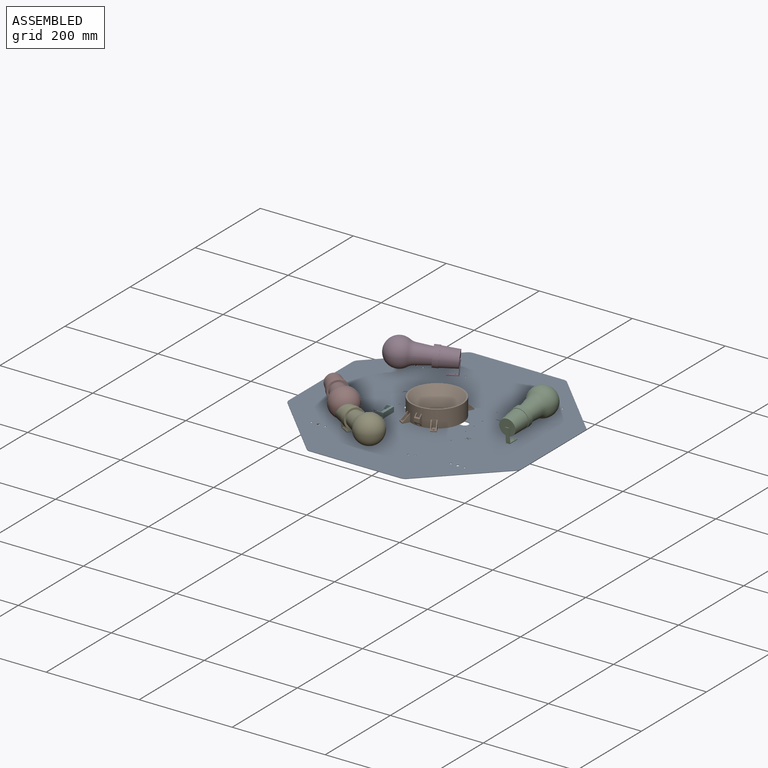
[diagram: assembled view]
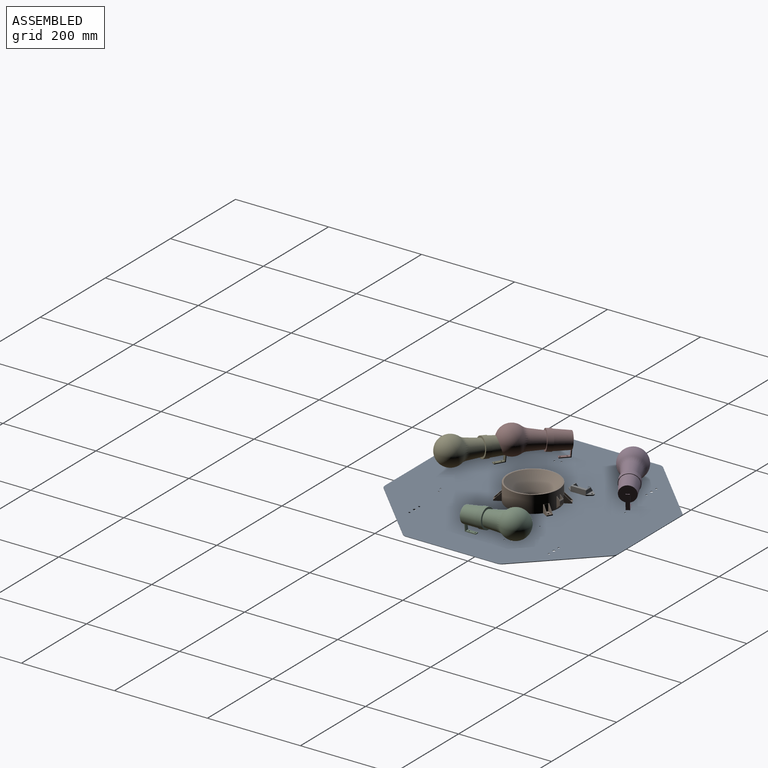
[diagram: assembled view, second angle]
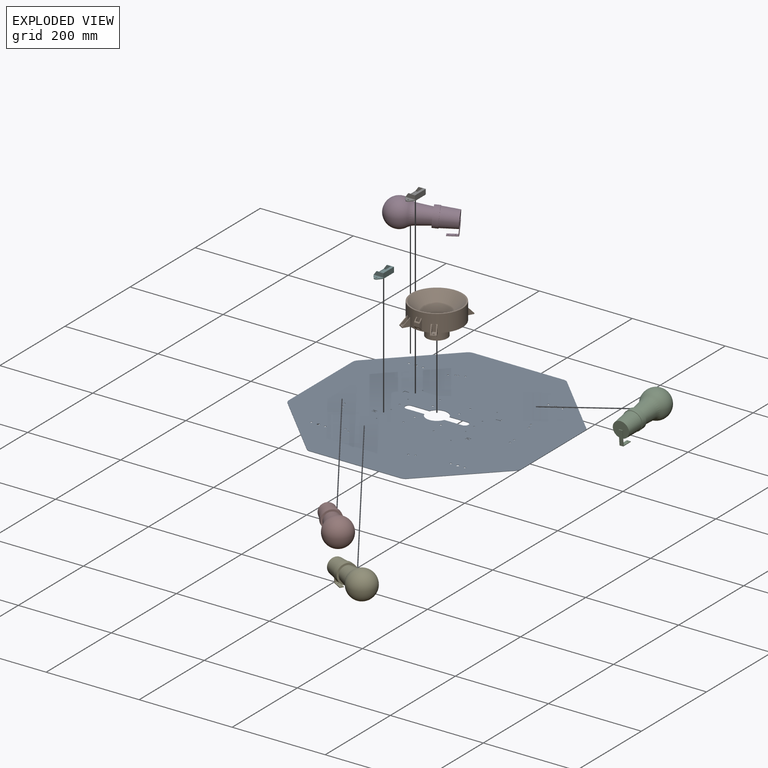
[diagram: exploded view]
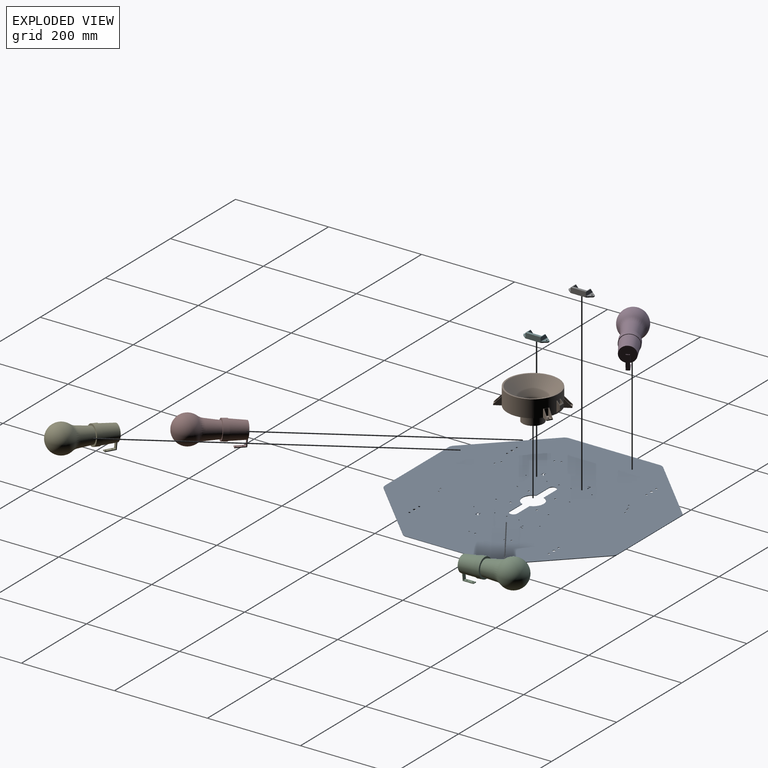
[diagram: exploded view, second angle]
FCSTD DOCUMENT  (FreeCAD 0.19R24276 (Git))
Label: Baugruppe_Lampe
License: All rights reserved
LicenseURL: http://en.wikipedia.org/wiki/All_rights_reserved
objects: Part::FeaturePython×25, App::Link×8, App::FeaturePython×5
note: 24 computed .brp shape members not serialized (recipe doc carries the construction recipe); baked Part::Feature solids carry a one-line shape summary decoded from their .brp
EXTERNAL_REF file=Metalicht_v2.FCStd obj=Body
EXTERNAL_REF file=Trichter.FCStd obj=Body
EXTERNAL_REF file=Birne_mit_Fassung.FCStd obj=Body
EXTERNAL_REF file=Wago_5x_flach.FCStd obj=Part__Feature

FEATURE [App::Link] Link  label="Body"
  LinkedObject = -> <external Metalicht_v2.FCStd>#Body
FEATURE [App::Link] Link001  label="Body001"
  LinkPlacement = pos=(0,0,1) rot=(0,0,1;0rad)
  LinkedObject = -> <external Trichter.FCStd>#Body
  Placement = pos=(0,0,1) rot=(0,0,1;0rad)
FEATURE [App::Link] Link002  label="Body002"
  LinkPlacement = pos=(169.926,-26,33.009) rot=(-0.043578,0.043578,-0.998099;4.71049rad)
  LinkedObject = -> <external Birne_mit_Fassung.FCStd>#Body
  Placement = pos=(169.926,-26,33.009) rot=(-0.043578,0.043578,-0.998099;4.71049rad)
FEATURE [App::Link] Link003  label="Body003"
  LinkPlacement = pos=(-62.4466,160.161,33.009) rot=(-0.043616,-0.011687,-0.99898;2.6185rad)
  LinkedObject = -> <external Birne_mit_Fassung.FCStd>#Body
  Placement = pos=(-62.4466,160.161,33.009) rot=(-0.043616,-0.011687,-0.99898;2.6185rad)
FEATURE [App::Link] Link004  label="Body004"
  LinkPlacement = pos=(-107.48,-134.161,33.009) rot=(-0.043053,-0.160675,-0.986068;0.530656rad)
  LinkedObject = -> <external Birne_mit_Fassung.FCStd>#Body
  Placement = pos=(-107.48,-134.161,33.009) rot=(-0.043053,-0.160675,-0.986068;0.530656rad)
FEATURE [App::Link] Link005  label="Wago_5x_flach"
  LinkPlacement = pos=(-69.5826,-37.87,-17.9525) rot=(0.57735,0.57735,-0.57735;4.18879rad)
  LinkedObject = -> <external Wago_5x_flach.FCStd>#Part__Feature
  Placement = pos=(-69.5826,-37.87,-17.9525) rot=(0.57735,0.57735,-0.57735;4.18879rad)
FEATURE [App::Link] Link006  label="Wago_5x_flach001"
  LinkPlacement = pos=(-69.5,59.5001,-18) rot=(0.57735,0.57735,-0.57735;4.18879rad)
  LinkedObject = -> <external Wago_5x_flach.FCStd>#Part__Feature
  Placement = pos=(-69.5,59.5001,-18) rot=(0.57735,0.57735,-0.57735;4.18879rad)
FEATURE [App::Link] Link007  label="Body005"
  LinkPlacement = pos=(-188.526,-48.5427,34.0759) rot=(-0.043379,-0.104728,-0.993554;0.789981rad)
  LinkedObject = -> <external Birne_mit_Fassung.FCStd>#Body
  Placement = pos=(-188.526,-48.5427,34.0759) rot=(-0.043379,-0.104728,-0.993554;0.789981rad)
FEATURE [Part::FeaturePython] Parts  # WARN: FeaturePython — macro-defined, semantics opaque (R4)
  Group = -> [Link,Link001,Link002,Link003,Link004,Link005,Link006,Link007]
  GroupMode = 0
FEATURE [Part::FeaturePython] Assembly  # WARN: FeaturePython — macro-defined, semantics opaque (R4)
  AutoRelax = true
  BuildShape = 0
  Freeze = false
  Group = -> [Constraints,Elements,Parts]
  Verbose = false
  _SolverType = 1
  _Version = 1
FEATURE [App::FeaturePython] Constraints  # WARN: FeaturePython — macro-defined, semantics opaque (R4)
  Group = -> [Constraint]
  _Version = 1
FEATURE [App::FeaturePython] Elements  # WARN: FeaturePython — macro-defined, semantics opaque (R4)
  Group = -> [_Element,_Element001,_Element002,_Element003,_Element004,_Element005,_Element006,_Element007,_Element008,_Element009,_Element010,_Element011,_Element012,_Element013,_Element014,_Element015,_Element016,_Element017,_Element018,_Element019,_Element020,_Element021,_Element022]
FEATURE [App::FeaturePython] Constraint  label="Locked"  # WARN: FeaturePython — macro-defined, semantics opaque (R4)
  Disabled = false
  Group = -> [ElementLink,ElementLink001]
  _ConstraintType = 0
  _Parent = -> Constraints
FEATURE [App::FeaturePython] ElementLink  label="_Element"  # link proxy (typed FeaturePython)
  LinkTransform = true
  LinkedObject = -> _Element
  _Parent = -> Constraint
FEATURE [Part::FeaturePython] _Element  # link proxy (typed FeaturePython)
  Detach = false
  LinkTransform = true
  LinkedObject = -> Link [PolarPattern.Face5]
  _Parent = -> Elements
FEATURE [App::FeaturePython] ElementLink001  label="_Element001"  # link proxy (typed FeaturePython)
  LinkTransform = true
  LinkedObject = -> _Element001
  _Parent = -> Constraint
FEATURE [Part::FeaturePython] _Element001  # link proxy (typed FeaturePython)
  Detach = false
  LinkTransform = true
  LinkedObject = -> Link001 [Revolution.Face2]
  _Parent = -> Elements
FEATURE [Part::FeaturePython] _Element002  # link proxy (typed FeaturePython)
  Detach = false
  LinkTransform = true
  LinkedObject = -> Link [PolarPattern.Edge37]
  _Parent = -> Elements
FEATURE [Part::FeaturePython] _Element003  # link proxy (typed FeaturePython)
  Detach = false
  LinkTransform = true
  LinkedObject = -> Link003 [Hole.Edge39]
  _Parent = -> Elements
FEATURE [Part::FeaturePython] _Element004  # link proxy (typed FeaturePython)
  Detach = false
  LinkTransform = true
  LinkedObject = -> Link [PolarPattern.Edge35]
  _Parent = -> Elements
FEATURE [Part::FeaturePython] _Element005  # link proxy (typed FeaturePython)
  Detach = false
  LinkTransform = true
  LinkedObject = -> Link003 [Hole.Edge38]
  _Parent = -> Elements
FEATURE [Part::FeaturePython] _Element006  # link proxy (typed FeaturePython)
  Detach = false
  LinkTransform = true
  LinkedObject = -> Link004 [Hole.Edge38]
  _Parent = -> Elements
FEATURE [Part::FeaturePython] _Element007  # link proxy (typed FeaturePython)
  Detach = false
  LinkTransform = true
  LinkedObject = -> Link [PolarPattern.Edge29]
  _Parent = -> Elements
FEATURE [Part::FeaturePython] _Element008  # link proxy (typed FeaturePython)
  Detach = false
  LinkTransform = true
  LinkedObject = -> Link [PolarPattern.Edge30]
  _Parent = -> Elements
FEATURE [Part::FeaturePython] _Element009  # link proxy (typed FeaturePython)
  Detach = false
  LinkTransform = true
  LinkedObject = -> Link004 [Hole.Edge39]
  _Parent = -> Elements
FEATURE [Part::FeaturePython] _Element010  # link proxy (typed FeaturePython)
  Detach = false
  LinkTransform = true
  LinkedObject = -> Link002 [Hole.Edge38]
  _Parent = -> Elements
FEATURE [Part::FeaturePython] _Element011  # link proxy (typed FeaturePython)
  Detach = false
  LinkTransform = true
  LinkedObject = -> Link [PolarPattern.Edge33]
  _Parent = -> Elements
FEATURE [Part::FeaturePython] _Element012  # link proxy (typed FeaturePython)
  Detach = false
  LinkTransform = true
  LinkedObject = -> Link [PolarPattern.Edge32]
  _Parent = -> Elements
FEATURE [Part::FeaturePython] _Element013  # link proxy (typed FeaturePython)
  Detach = false
  LinkTransform = true
  LinkedObject = -> Link002 [Hole.Edge39]
  _Parent = -> Elements
FEATURE [Part::FeaturePython] _Element014  # link proxy (typed FeaturePython)
  Detach = false
  LinkTransform = true
  LinkedObject = -> Link [PolarPattern.Edge36]
  _Parent = -> Elements
FEATURE [Part::FeaturePython] _Element015  # link proxy (typed FeaturePython)
  Detach = false
  LinkTransform = true
  LinkedObject = -> Link [PolarPattern.Edge34]
  _Parent = -> Elements
FEATURE [Part::FeaturePython] _Element016  # link proxy (typed FeaturePython)
  Detach = false
  LinkTransform = true
  LinkedObject = -> Link [Pocket002.Edge64]
  _Parent = -> Elements
FEATURE [Part::FeaturePython] _Element017  # link proxy (typed FeaturePython)
  Detach = false
  LinkTransform = true
  LinkedObject = -> Link [Pocket002.Edge63]
  _Parent = -> Elements
FEATURE [Part::FeaturePython] _Element018  # link proxy (typed FeaturePython)
  Detach = false
  LinkTransform = true
  LinkedObject = -> Link [Pocket002.Edge100]
  _Parent = -> Elements
FEATURE [Part::FeaturePython] _Element019  # link proxy (typed FeaturePython)
  Detach = false
  LinkTransform = true
  LinkedObject = -> Link [Pocket002.Edge99]
  _Parent = -> Elements
FEATURE [Part::FeaturePython] _Element020  # link proxy (typed FeaturePython)
  Detach = false
  LinkTransform = true
  LinkedObject = -> Link [Pocket002.Edge86]
  _Parent = -> Elements
FEATURE [Part::FeaturePython] _Element021  # link proxy (typed FeaturePython)
  Detach = false
  LinkTransform = true
  LinkedObject = -> Link [Pocket002.Edge88]
  _Parent = -> Elements
FEATURE [Part::FeaturePython] _Element022  # link proxy (typed FeaturePython)
  Detach = false
  LinkTransform = true
  LinkedObject = -> Link [Pocket002.Edge87]
  _Parent = -> Elements

RESOLVED EXTERNAL PARTS (link-assembly join: the EXTERNAL_REF files above that resolve inside this repo's crawl, each included once):
---- part Birne_mit_Fassung.FCStd = doc fcstd_91edc3af70b6 ----
FCSTD DOCUMENT  (FreeCAD 0.19R24276 (Git))
Label: Birne_mit_Fassung
License: All rights reserved
LicenseURL: http://en.wikipedia.org/wiki/All_rights_reserved
objects: Sketcher::SketchObject×3, PartDesign::Revolution×1, PartDesign::Pad×1, PartDesign::Fillet×1, PartDesign::Hole×1, PartDesign::Body×1
note: 12 computed .brp shape members not serialized (recipe doc carries the construction recipe); baked Part::Feature solids carry a one-line shape summary decoded from their .brp

FEATURE [Sketcher::SketchObject] Sketch
  FullyConstrained = true
  MapMode = 5
  Placement = pos=(0,0,0) rot=(1,0,0;1.5708rad)
  Support = -> [XZ_Plane]
  sketch-geometry (8):
    g0: LineSegment StartX=0 StartY=0 StartZ=0 EndX=0 EndY=17.5 EndZ=0
    g1: LineSegment StartX=0 StartY=17.5 StartZ=0 EndX=36 EndY=20 EndZ=0
    g2: LineSegment StartX=36 StartY=20 StartZ=0 EndX=36 EndY=21 EndZ=0
    g3: LineSegment StartX=36 StartY=21 StartZ=0 EndX=48 EndY=21 EndZ=0
    g4: LineSegment StartX=48 StartY=21 StartZ=0 EndX=48 EndY=17 EndZ=0
    g5: LineSegment StartX=48 StartY=17 StartZ=0 EndX=87 EndY=21.4243 EndZ=0
    g6: ArcOfCircle CenterX=108 CenterY=0 CenterZ=0 NormalX=0 NormalY=0 NormalZ=1 AngleXU=0 Radius=30 StartAngle=0 EndAngle=2.34619
    g7: LineSegment StartX=138 StartY=0 StartZ=0 EndX=0 EndY=0 EndZ=0
  constraints (24):
    c: Coincident(g-1,g0)
    c: PointOnObject(g0,g-2)
    c: Coincident(g0,g1)
    c: Coincident(g1,g2)
    c: Vertical(g2)
    c: Coincident(g2,g3)
    c: Horizontal(g3)
    c: Coincident(g3,g4)
    c: Vertical(g4)
    c: Coincident(g4,g5)
    c: PointOnObject(g6,g-1)
    c: Coincident(g6,g5)
    c: PointOnObject(g6,g-1)
    c: Coincident(g7,g6)
    c: Coincident(g7,g0)
    c: DistanceX(g0,g3) = 48
    c: Radius(g6) = 30
    c: DistanceX(g4,g6) = 90
    c: DistanceX(g3,g3) = 12
    c: DistanceX(g4,g5) = 39
    c: DistanceY(g0,g0) = 17.5
    c: DistanceY(g0,g3) = 21
    c: DistanceY(g2,g2) = 1
    c: DistanceY(g0,g4) = 17
FEATURE [PartDesign::Revolution] Revolution
  Angle = 360
  Axis = (1,0,0)
  Base = (0,0,0)
  Placement = pos=(0,0,0) rot=(1,0,0;1.5708rad)
  Profile = -> Sketch
  ReferenceAxis = -> Sketch [H_Axis]
FEATURE [Sketcher::SketchObject] Sketch001
  FullyConstrained = true
  MapMode = 5
  Placement = pos=(0,0,0) rot=(1,0,0;1.5708rad)
  Support = -> [XZ_Plane]
  sketch-geometry (6):
    g0: LineSegment StartX=0 StartY=0 StartZ=0 EndX=0 EndY=-30.6255 EndZ=0
    g1: LineSegment StartX=0 StartY=-30.6255 StartZ=0 EndX=21.5432 EndY=-32.5103 EndZ=0
    g2: LineSegment StartX=21.5432 StartY=-32.5103 StartZ=0 EndX=21.4125 EndY=-34.0046 EndZ=0
    g3: LineSegment StartX=21.4125 StartY=-34.0046 StartZ=0 EndX=-1.5 EndY=-32 EndZ=0
    g4: LineSegment StartX=-1.5 StartY=-32 StartZ=0 EndX=-1.5 EndY=0 EndZ=0
    g5: LineSegment StartX=-1.5 StartY=0 StartZ=0 EndX=0 EndY=0 EndZ=0
  constraints (17):
    c: Coincident(g-1,g0)
    c: PointOnObject(g0,g-2)
    c: Coincident(g0,g1)
    c: Coincident(g1,g2)
    c: Coincident(g2,g3)
    c: Coincident(g3,g4)
    c: PointOnObject(g4,g-1)
    c: Vertical(g4)
    c: Coincident(g4,g5)
    c: Coincident(g5,g0)
    c: Perpendicular(g2,g3)
    c: Perpendicular(g1,g2)
    c: Equal(g5,g2)
    c: DistanceX(g5,g5) = 1.5
    c: DistanceY(g4,g4) = 32
    c: Angle(g1,g0) = 1.65806
    c: Distance(g3) = 23
FEATURE [PartDesign::Pad] Pad
  BaseFeature = -> Revolution
  Direction = (1,1,1)
  Length = 8
  Length2 = 100
  Midplane = true
  Placement = pos=(0,0,0) rot=(1,0,0;1.5708rad)
  Profile = -> Sketch001
  Type = 0
FEATURE [PartDesign::Fillet] Fillet
  Base = -> Pad [Edge30]
  BaseFeature = -> Pad
  Placement = pos=(0,0,0) rot=(1,0,0;1.5708rad)
  Radius = 25
  SupportTransform = false
FEATURE [Sketcher::SketchObject] Sketch002
  FullyConstrained = false
  MapMode = 5
  Placement = pos=(-2.78977,-2.12e-14,-31.8872) rot=(0.999048,0,-0.043619;3.14159rad)
  Support = -> [Fillet]
  sketch-geometry (2):
    g0: Circle CenterX=8 CenterY=0 CenterZ=0 NormalX=0 NormalY=0 NormalZ=1 AngleXU=0 Radius=2.06982
    g1: Circle CenterX=21 CenterY=0 CenterZ=0 NormalX=0 NormalY=0 NormalZ=1 AngleXU=0 Radius=2.01033
  constraints (4):
    c: PointOnObject(g0,g-1)
    c: PointOnObject(g1,g-1)
    c: DistanceX(g0,g1) = 13
    c: DistanceX(g-1,g0) = 8
FEATURE [PartDesign::Hole] Hole
  BaseFeature = -> Fillet
  Depth = 3
  DepthType = 0
  Diameter = 2.5
  DrillForDepth = false
  DrillPoint = 1
  DrillPointAngle = 118
  HoleCutCountersinkAngle = 90
  HoleCutCustomValues = false
  HoleCutDepth = 0
  HoleCutDiameter = 6.1
  HoleCutType = 0
  ModelActualThread = false
  Placement = pos=(0,0,0) rot=(1,0,0;1.5708rad)
  Profile = -> Sketch002
  Tapered = false
  TaperedAngle = 90
  ThreadAngle = 60
  ThreadClass = 5
  ThreadCutOffInner = 0.0541266
  ThreadCutOffOuter = 0.108253
  ThreadDirection = 0
  ThreadFit = 0
  ThreadPitch = 0.5
  ThreadSize = 9
  ThreadType = 1
  Threaded = true
FEATURE [PartDesign::Body] Body
  Group = -> [Sketch,Revolution,Sketch001,Pad,Fillet,Sketch002,Hole]
  Origin = -> Origin
  Tip = -> Hole
---- part Metalicht_v2.FCStd = doc fcstd_c46f964f9d03 ----
FCSTD DOCUMENT  (FreeCAD 0.19R24276 (Git))
Label: Metalicht_v2
License: All rights reserved
LicenseURL: http://en.wikipedia.org/wiki/All_rights_reserved
objects: Sketcher::SketchObject×7, PartDesign::Pocket×6, PartDesign::PolarPattern×2, PartDesign::Pad×1, PartDesign::Fillet×1, PartDesign::Body×1
note: 26 computed .brp shape members not serialized (recipe doc carries the construction recipe); baked Part::Feature solids carry a one-line shape summary decoded from their .brp

FEATURE [Sketcher::SketchObject] Sketch
  FullyConstrained = true
  MapMode = 5
  Support = -> [XY_Plane]
  sketch-geometry (21):
    g0: Circle CenterX=0 CenterY=0 CenterZ=0 NormalX=0 NormalY=0 NormalZ=1 AngleXU=0 Radius=250
    g1: Circle CenterX=0 CenterY=0 CenterZ=0 NormalX=0 NormalY=0 NormalZ=1 AngleXU=0 Radius=23
    g2: Circle CenterX=150 CenterY=150 CenterZ=0 NormalX=0 NormalY=0 NormalZ=1 AngleXU=0 Radius=2.75
    g3: Circle CenterX=-150 CenterY=150 CenterZ=0 NormalX=0 NormalY=0 NormalZ=1 AngleXU=0 Radius=2.75
    g4: Circle CenterX=-150 CenterY=-150 CenterZ=0 NormalX=0 NormalY=0 NormalZ=1 AngleXU=0 Radius=2.75
    g5: Circle CenterX=150 CenterY=-150 CenterZ=0 NormalX=0 NormalY=0 NormalZ=1 AngleXU=0 Radius=2.75
    g6: LineSegment StartX=103.553 StartY=250 StartZ=0 EndX=-103.553 EndY=250 EndZ=0
    g7: LineSegment StartX=-103.553 StartY=250 StartZ=0 EndX=-250 EndY=103.553 EndZ=0
    g8: LineSegment StartX=-250 StartY=103.553 StartZ=0 EndX=-250 EndY=-103.553 EndZ=0
    g9: LineSegment StartX=-250 StartY=-103.553 StartZ=0 EndX=-103.553 EndY=-250 EndZ=0
    g10: LineSegment StartX=-103.553 StartY=-250 StartZ=0 EndX=103.553 EndY=-250 EndZ=0
    g11: LineSegment StartX=103.553 StartY=-250 StartZ=0 EndX=250 EndY=-103.553 EndZ=0
    g12: LineSegment StartX=250 StartY=-103.553 StartZ=0 EndX=250 EndY=103.553 EndZ=0
    g13: LineSegment StartX=250 StartY=103.553 StartZ=0 EndX=103.553 EndY=250 EndZ=0
    g14: Circle CenterX=0 CenterY=0 CenterZ=0 NormalX=0 NormalY=0 NormalZ=1 AngleXU=0 Radius=270.598
    g15: Circle CenterX=28.2843 CenterY=28.2843 CenterZ=0 NormalX=0 NormalY=0 NormalZ=1 AngleXU=0 Radius=2
    g16: Circle CenterX=-28.2843 CenterY=28.2843 CenterZ=0 NormalX=0 NormalY=0 NormalZ=1 AngleXU=0 Radius=2
    g17: Circle CenterX=-28.2843 CenterY=-28.2843 CenterZ=0 NormalX=0 NormalY=0 NormalZ=1 AngleXU=0 Radius=2
    g18: Circle CenterX=28.2843 CenterY=-28.2843 CenterZ=0 NormalX=0 NormalY=0 NormalZ=1 AngleXU=0 Radius=2
    g19: LineSegment StartX=-28.2843 StartY=28.2843 StartZ=0 EndX=28.2843 EndY=28.2843 EndZ=0
    g20: LineSegment StartX=-28.2843 StartY=28.2843 StartZ=0 EndX=-28.2843 EndY=-28.2843 EndZ=0
  constraints (46):
    c: Coincident(g0,g-1)
    c: Diameter(g0) = 500
    c: Coincident(g1,g0)
    c: Diameter(g1) = 46
    c: Equal(g5,g4)
    c: Equal(g4,g3)
    c: Equal(g3,g2)
    c: Diameter(g2) = 5.5
    c: Symmetric(g2,g5,g-1)
    c: Symmetric(g5,g4,g-2)
    c: Symmetric(g3,g2,g-2)
    c: DistanceX(g3,g2) = 300
    c: DistanceY(g5,g2) = 300
    c: Coincident(g6,g7)
    c: Coincident(g7,g8)
    c: Coincident(g8,g9)
    c: Coincident(g9,g10)
    c: Coincident(g10,g11)
    c: Coincident(g11,g12)
    c: Coincident(g12,g13)
    c: Coincident(g13,g6)
    c: Equal(g6, g7-g13) x7
    c: PointOnObject(g6,g14)
    c: PointOnObject(g7,g14)
    c: PointOnObject(g8,g14)
    c: PointOnObject(g9,g14)
    c: PointOnObject(g10,g14)
    c: PointOnObject(g11,g14)
    c: PointOnObject(g12,g14)
    c: PointOnObject(g13,g14)
    c: Coincident(g14,g1)
    c: Tangent(g0,g6)
    c: Horizontal(g6)
    c: Symmetric(g16,g15,g-2)
    c: Symmetric(g17,g16,g-1)
    c: Symmetric(g17,g18,g-2)
    c: Equal(g16,g17)
    c: Equal(g17,g18)
    c: Equal(g18,g15)
    c: Distance(g16,g1) = 40
    c: Coincident(g19,g16)
    c: Coincident(g19,g15)
    c: Coincident(g20,g16)
    c: Coincident(g20,g17)
    c: Equal(g20,g19)
    c: Diameter(g16) = 4
FEATURE [PartDesign::Pad] Pad
  Direction = (1,1,1)
  Length = 1
  Length2 = 100
  Profile = -> Sketch
  Type = 0
FEATURE [Sketcher::SketchObject] Sketch001
  FullyConstrained = true
  MapMode = 5
  Support = -> [XY_Plane]
  sketch-geometry (3):
    g0: Circle CenterX=169.926 CenterY=-5 CenterZ=0 NormalX=0 NormalY=0 NormalZ=1 AngleXU=0 Radius=1.65
    g1: Circle CenterX=169.926 CenterY=-18 CenterZ=0 NormalX=0 NormalY=0 NormalZ=1 AngleXU=0 Radius=1.65
    g2: LineSegment StartX=169.926 StartY=-5 StartZ=0 EndX=169.926 EndY=-18 EndZ=0
  constraints (8):
    c: Equal(g1,g0)
    c: Diameter(g0) = 3.3
    c: Distance(g1,g0) = 13
    c: Coincident(g2,g0)
    c: Coincident(g2,g1)
    c: Angle(g-1,g2) = 1.5708
    c: DistanceY(g0,g-1) = 5
    c: Distance(g-1,g0) = 170
FEATURE [PartDesign::Pocket] Pocket
  BaseFeature = -> Pad
  Length = 5
  Length2 = 100
  Profile = -> Sketch001
  Reversed = true
  Type = 1
FEATURE [PartDesign::PolarPattern] PolarPattern
  Angle = 360
  Axis = -> Sketch001 [N_Axis]
  BaseFeature = -> Pocket
  Occurrences = 3
  Originals = -> [Pocket]
FEATURE [Sketcher::SketchObject] Sketch002
  FullyConstrained = true
  MapMode = 5
  Support = -> [XY_Plane]
  sketch-geometry (4):
    g0: ArcOfCircle CenterX=-60 CenterY=0 CenterZ=0 NormalX=0 NormalY=0 NormalZ=1 AngleXU=0 Radius=8 StartAngle=1.5708 EndAngle=4.71239
    g1: ArcOfCircle CenterX=60 CenterY=0 CenterZ=0 NormalX=0 NormalY=0 NormalZ=1 AngleXU=0 Radius=8 StartAngle=4.71239 EndAngle=7.85398
    g2: LineSegment StartX=-60 StartY=-8 StartZ=0 EndX=60 EndY=-8 EndZ=0
    g3: LineSegment StartX=-60 StartY=8 StartZ=0 EndX=60 EndY=8 EndZ=0
  constraints (9):
    c: Tangent(g0,g3) = 1.5708
    c: Tangent(g0,g2) = -1.5708
    c: Tangent(g2,g1) = -1.5708
    c: Tangent(g3,g1) = 1.5708
    c: Horizontal(g2)
    c: PointOnObject(g0,g-1)
    c: Symmetric(g0,g1,g-2)
    c: Radius(g1) = 8
    c: DistanceX(g3,g3) = 120
FEATURE [PartDesign::Pocket] Pocket001
  BaseFeature = -> PolarPattern
  Length = 5
  Length2 = 100
  Profile = -> Sketch002
  Reversed = true
  Type = 0
FEATURE [Sketcher::SketchObject] Sketch003
  FullyConstrained = true
  MapMode = 5
  Support = -> [XY_Plane]
  sketch-geometry (42):
    g0: Circle CenterX=-80 CenterY=71 CenterZ=0 NormalX=0 NormalY=0 NormalZ=1 AngleXU=0 Radius=1.1
    g1: Circle CenterX=-80 CenterY=26 CenterZ=0 NormalX=0 NormalY=0 NormalZ=1 AngleXU=0 Radius=1.1
    g2: Circle CenterX=-80 CenterY=-26 CenterZ=0 NormalX=0 NormalY=0 NormalZ=1 AngleXU=0 Radius=1.1
    g3: Circle CenterX=-80 CenterY=-71 CenterZ=0 NormalX=0 NormalY=0 NormalZ=1 AngleXU=0 Radius=1.1
    g4: Circle CenterX=-80 CenterY=0 CenterZ=0 NormalX=0 NormalY=0 NormalZ=1 AngleXU=0 Radius=1.45
    g5: LineSegment StartX=-95 StartY=51 StartZ=0 EndX=-105 EndY=51 EndZ=0
    g6: LineSegment StartX=-105 StartY=51 StartZ=0 EndX=-105 EndY=45 EndZ=0
    g7: LineSegment StartX=-105 StartY=45 StartZ=0 EndX=-103.5 EndY=45 EndZ=0
    g8: LineSegment StartX=-103.5 StartY=45 StartZ=0 EndX=-103.5 EndY=49.5 EndZ=0
    g9: LineSegment StartX=-103.5 StartY=49.5 StartZ=0 EndX=-95 EndY=49.5 EndZ=0
    g10: LineSegment StartX=-95 StartY=49.5 StartZ=0 EndX=-95 EndY=51 EndZ=0
    g11: LineSegment StartX=-105 StartY=-45 StartZ=0 EndX=-95 EndY=-45 EndZ=0
    g12: LineSegment StartX=-95 StartY=-45 StartZ=0 EndX=-101.312 EndY=-49.5 EndZ=0
    g13: LineSegment StartX=-101.312 StartY=-49.5 StartZ=0 EndX=-96 EndY=-49.5 EndZ=0
    g14: LineSegment StartX=-96 StartY=-49.5 StartZ=0 EndX=-96 EndY=-51 EndZ=0
    g15: LineSegment StartX=-96 StartY=-51 StartZ=0 EndX=-106 EndY=-51 EndZ=0
    g16: LineSegment StartX=-106 StartY=-51 StartZ=0 EndX=-99.688 EndY=-46.5 EndZ=0
    g17: LineSegment StartX=-99.688 StartY=-46.5 StartZ=0 EndX=-105 EndY=-46.5 EndZ=0
    g18: LineSegment StartX=-105 StartY=-46.5 StartZ=0 EndX=-105 EndY=-45 EndZ=0
    g19: LineSegment StartX=-99.688 StartY=-46.5 StartZ=0 EndX=-98.8172 EndY=-47.7214 EndZ=0
    g20: LineSegment StartX=-105 StartY=-45 StartZ=0 EndX=-105 EndY=45 EndZ=0
    g21: Circle CenterX=80 CenterY=71 CenterZ=0 NormalX=0 NormalY=0 NormalZ=1 AngleXU=0 Radius=1.1
    g22: Circle CenterX=80 CenterY=26 CenterZ=0 NormalX=0 NormalY=0 NormalZ=1 AngleXU=0 Radius=1.1
    g23: Circle CenterX=80 CenterY=0 CenterZ=0 NormalX=0 NormalY=0 NormalZ=1 AngleXU=0 Radius=1.45
    g24: Circle CenterX=80 CenterY=-26 CenterZ=0 NormalX=0 NormalY=0 NormalZ=1 AngleXU=0 Radius=1.1
    g25: Circle CenterX=80 CenterY=-71 CenterZ=0 NormalX=0 NormalY=0 NormalZ=1 AngleXU=0 Radius=1.1
    g26: LineSegment StartX=105 StartY=-51 StartZ=0 EndX=95 EndY=-51 EndZ=0
    g27: LineSegment StartX=95 StartY=-51 StartZ=0 EndX=101.312 EndY=-46.5 EndZ=0
    g28: LineSegment StartX=101.312 StartY=-46.5 StartZ=0 EndX=96 EndY=-46.5 EndZ=0
    g29: LineSegment StartX=96 StartY=-46.5 StartZ=0 EndX=96 EndY=-45 EndZ=0
    g30: LineSegment StartX=96 StartY=-45 StartZ=0 EndX=106 EndY=-45 EndZ=0
    g31: LineSegment StartX=106 StartY=-45 StartZ=0 EndX=99.688 EndY=-49.5 EndZ=0
    g32: LineSegment StartX=99.688 StartY=-49.5 StartZ=0 EndX=105 EndY=-49.5 EndZ=0
    g33: LineSegment StartX=105 StartY=-49.5 StartZ=0 EndX=105 EndY=-51 EndZ=0
    g34: LineSegment StartX=99.688 StartY=-49.5 StartZ=0 EndX=98.8172 EndY=-48.2786 EndZ=0
    g35: LineSegment StartX=95 StartY=45 StartZ=0 EndX=105 EndY=45 EndZ=0
    g36: LineSegment StartX=105 StartY=45 StartZ=0 EndX=105 EndY=51 EndZ=0
    g37: LineSegment StartX=105 StartY=51 StartZ=0 EndX=103.5 EndY=51 EndZ=0
    g38: LineSegment StartX=103.5 StartY=51 StartZ=0 EndX=103.5 EndY=46.5 EndZ=0
    g39: LineSegment StartX=103.5 StartY=46.5 StartZ=0 EndX=95 EndY=46.5 EndZ=0
    g40: LineSegment StartX=95 StartY=46.5 StartZ=0 EndX=95 EndY=45 EndZ=0
    g41: LineSegment StartX=105 StartY=45 StartZ=0 EndX=105 EndY=-45 EndZ=0
  constraints (116):
    c: Equal(g3,g2)
    c: Equal(g2,g1)
    c: Equal(g1,g0)
    c: Vertical(g0,g1)
    c: Symmetric(g0,g3,g-1)
    c: Symmetric(g1,g2,g-1)
    c: DistanceY(g1,g0) = 45
    c: DistanceY(g-1,g1) = 26
    c: Diameter(g0) = 2.2
    c: DistanceX(g1,g-1) = 80
    c: PointOnObject(g4,g-1)
    c: Vertical(g1,g4)
    c: Diameter(g4) = 2.9
    c: Coincident(g5,g6)
    c: Coincident(g6,g7)
    c: Horizontal(g7)
    c: Coincident(g7,g8)
    c: Vertical(g8)
    c: Coincident(g8,g9)
    c: Horizontal(g9)
    c: Coincident(g9,g10)
    c: Coincident(g10,g5)
    c: Vertical(g10)
    c: Horizontal(g11)
    c: Coincident(g11,g12)
    c: Coincident(g12,g13)
    c: Coincident(g13,g14)
    c: Vertical(g14)
    c: Coincident(g14,g15)
    c: Horizontal(g15)
    c: Coincident(g15,g16)
    c: Coincident(g16,g17)
    c: Coincident(g17,g18)
    c: Coincident(g18,g11)
    c: Vertical(g18)
    c: Horizontal(g13)
    c: Horizontal(g17)
    c: Parallel(g16,g12)
    c: Coincident(g19,g16)
    c: Coincident(g20,g11)
    c: Coincident(g20,g6)
    c: Perpendicular(g19,g16)
    c: Equal(g19,g14)
    c: DistanceY(g14,g14) = 1.5
    c: DistanceX(g13,g11) = 1
    c: DistanceX(g15,g17) = 1
    c: DistanceX(g11,g11) = 10
    c: Vertical(g6)
    c: Horizontal(g5)
    c: Equal(g10,g14)
    c: DistanceY(g6,g6) = 6
    c: DistanceX(g5,g5) = 10
    c: Symmetric(g6,g11,g-1)
    c: DistanceY(g20,g20) = 90
    c: DistanceX(g17,g2) = 25
    c: PointOnObject(g19,g12)
    c: Equal(g18,g19)
    c: DistanceY(g14,g11) = 6
    c: Equal(g25,g24)
    c: Equal(g24,g22)
    c: Equal(g22,g21)
    c: Equal(g25,g3)
    c: Symmetric(g3,g25,g-2)
    c: Symmetric(g2,g24,g-2)
    c: Symmetric(g22,g1,g-2)
    c: Symmetric(g0,g21,g-2)
    c: Symmetric(g23,g4,g-2)
    c: Equal(g4,g23)
    c: Equal(g7,g10)
    c: Horizontal(g26)
    c: Coincident(g26,g27)
    c: Coincident(g27,g28)
    c: Horizontal(g28)
    c: Coincident(g28,g29)
    c: Vertical(g29)
    c: Coincident(g29,g30)
    c: Horizontal(g30)
    c: Coincident(g30,g31)
    c: Coincident(g31,g32)
    c: Horizontal(g32)
    c: Coincident(g32,g33)
    c: Coincident(g33,g26)
    c: Vertical(g33)
    c: Coincident(g34,g31)
    c: PointOnObject(g34,g27)
    c: Perpendicular(g27,g34)
    c: Parallel(g31,g27)
    c: Equal(g33,g29)
    c: Equal(g29,g34)
    c: Horizontal(g35)
    c: Coincident(g35,g36)
    c: Vertical(g36)
    c: Coincident(g36,g37)
    c: Horizontal(g37)
    c: Coincident(g37,g38)
    c: Vertical(g38)
    c: Coincident(g38,g39)
    c: Horizontal(g39)
    c: Coincident(g39,g40)
    c: Coincident(g40,g35)
    c: Vertical(g40)
    c: Coincident(g41,g35)
    c: PointOnObject(g41,g30)
    c: Vertical(g41)
    c: Symmetric(g35,g6,g-2)
    c: Equal(g9,g39)
    c: Equal(g37,g40)
    c: Equal(g40,g7)
    c: Equal(g36,g6)
    c: PointOnObject(g32,g41)
    c: Equal(g30,g15)
    c: Parallel(g27,g16)
    c: Equal(g41,g20)
    c: Equal(g29,g19)
    c: Equal(g31,g12)
    c: Equal(g28,g32)
FEATURE [PartDesign::Pocket] Pocket002
  BaseFeature = -> Pocket001
  Length = 5
  Length2 = 100
  Profile = -> Sketch003
  Reversed = true
  Type = 1
FEATURE [Sketcher::SketchObject] Sketch004
  FullyConstrained = true
  MapMode = 5
  Support = -> [XY_Plane]
  sketch-geometry (6):
    g0: Circle CenterX=-32.5 CenterY=-56.2917 CenterZ=0 NormalX=0 NormalY=0 NormalZ=1 AngleXU=0 Radius=1.45
    g1: Circle CenterX=32.5 CenterY=-56.2917 CenterZ=0 NormalX=0 NormalY=0 NormalZ=1 AngleXU=0 Radius=1.45
    g2: Circle CenterX=-32.5 CenterY=56.2917 CenterZ=0 NormalX=0 NormalY=0 NormalZ=1 AngleXU=0 Radius=1.45
    g3: Circle CenterX=32.5 CenterY=56.2917 CenterZ=0 NormalX=0 NormalY=0 NormalZ=1 AngleXU=0 Radius=1.45
    g4: Circle CenterX=0 CenterY=0 CenterZ=0 NormalX=0 NormalY=0 NormalZ=1 AngleXU=0 Radius=65
    g5: LineSegment StartX=0 StartY=0 StartZ=0 EndX=32.5 EndY=56.2917 EndZ=0
  constraints (13):
    c: Coincident(g4,g-1)
    c: PointOnObject(g3,g4)
    c: Radius(g4) = 65
    c: Equal(g2,g0)
    c: Equal(g0,g1)
    c: Equal(g1,g3)
    c: Symmetric(g2,g3,g-2)
    c: Symmetric(g0,g1,g-2)
    c: Symmetric(g1,g3,g-1)
    c: Coincident(g5,g-1)
    c: Coincident(g5,g3)
    c: Angle(g5,g-2) = 0.523599
    c: Diameter(g3) = 2.9
FEATURE [PartDesign::Pocket] Pocket003
  BaseFeature = -> Pocket002
  Length = 5
  Length2 = 100
  Profile = -> Sketch004
  Reversed = true
  Type = 1
FEATURE [Sketcher::SketchObject] Sketch005
  FullyConstrained = true
  MapMode = 5
  Support = -> [XY_Plane]
  sketch-geometry (10):
    g0: Circle CenterX=135 CenterY=150 CenterZ=0 NormalX=0 NormalY=0 NormalZ=1 AngleXU=0 Radius=2.1
    g1: Circle CenterX=165 CenterY=150 CenterZ=0 NormalX=0 NormalY=0 NormalZ=1 AngleXU=0 Radius=2.1
    g2: LineSegment StartX=0 StartY=0 StartZ=0 EndX=150 EndY=150 EndZ=0
    g3: Circle CenterX=-165 CenterY=150 CenterZ=0 NormalX=0 NormalY=0 NormalZ=1 AngleXU=0 Radius=2.1
    g4: Circle CenterX=-135 CenterY=150 CenterZ=0 NormalX=0 NormalY=0 NormalZ=1 AngleXU=0 Radius=2.1
    g5: Circle CenterX=-165 CenterY=-150 CenterZ=0 NormalX=0 NormalY=0 NormalZ=1 AngleXU=0 Radius=2.1
    g6: Circle CenterX=-135 CenterY=-150 CenterZ=0 NormalX=0 NormalY=0 NormalZ=1 AngleXU=0 Radius=2.1
    g7: Circle CenterX=135 CenterY=-150 CenterZ=0 NormalX=0 NormalY=0 NormalZ=1 AngleXU=0 Radius=2.1
    g8: Circle CenterX=165 CenterY=-150 CenterZ=0 NormalX=0 NormalY=0 NormalZ=1 AngleXU=0 Radius=2.1
    g9: LineSegment StartX=150 StartY=150 StartZ=0 EndX=150 EndY=0 EndZ=0
  constraints (23):
    c: Horizontal(g0,g1)
    c: Coincident(g2,g-1)
    c: Equal(g7,g6)
    c: Equal(g6,g5)
    c: Equal(g5,g8)
    c: Equal(g8,g3)
    c: Equal(g3,g4)
    c: Equal(g4,g0)
    c: Equal(g0,g1)
    c: Horizontal(g2,g1)
    c: DistanceX(g2,g2) = 150
    c: DistanceY(g2,g2) = 150
    c: Coincident(g9,g2)
    c: PointOnObject(g9,g-1)
    c: Symmetric(g0,g1,g9)
    c: DistanceX(g0,g1) = 30
    c: Diameter(g1) = 4.2
    c: Symmetric(g0,g4,g-2)
    c: Symmetric(g3,g1,g-2)
    c: Symmetric(g0,g7,g-1)
    c: Symmetric(g1,g8,g-1)
    c: Symmetric(g5,g8,g-2)
    c: Symmetric(g6,g7,g-2)
FEATURE [PartDesign::Pocket] Pocket004
  BaseFeature = -> Pocket003
  Length = 5
  Length2 = 100
  Profile = -> Sketch005
  Reversed = true
  Type = 1
FEATURE [Sketcher::SketchObject] Sketch006
  FullyConstrained = true
  MapMode = 5
  Support = -> [XY_Plane]
  sketch-geometry (4):
    g0: LineSegment StartX=0 StartY=0 StartZ=0 EndX=-159.748 EndY=-58.1434 EndZ=0
    g1: Circle CenterX=-161.971 CenterY=-52.0354 CenterZ=0 NormalX=0 NormalY=0 NormalZ=1 AngleXU=0 Radius=1.65
    g2: Circle CenterX=-157.525 CenterY=-64.2514 CenterZ=0 NormalX=0 NormalY=0 NormalZ=1 AngleXU=0 Radius=1.65
    g3: LineSegment StartX=-161.971 StartY=-52.0354 StartZ=0 EndX=-157.525 EndY=-64.2514 EndZ=0
  constraints (10):
    c: Coincident(g0,g-1)
    c: Distance(g0) = 170
    c: Angle(g0,g-1) = 2.79253
    c: Symmetric(g1,g2,g0)
    c: Equal(g1,g2)
    c: Coincident(g3,g1)
    c: Coincident(g3,g2)
    c: PointOnObject(g0,g3)
    c: Diameter(g1) = 3.3
    c: Distance(g3) = 13
FEATURE [PartDesign::Pocket] Pocket005
  BaseFeature = -> Pocket004
  Length = 5
  Length2 = 100
  Profile = -> Sketch006
  Reversed = true
  Type = 1
FEATURE [PartDesign::PolarPattern] PolarPattern001
  Angle = 360
  Axis = -> Sketch006 [N_Axis]
  BaseFeature = -> Pocket005
  Occurrences = 4
  Originals = -> [Pocket005]
FEATURE [PartDesign::Fillet] Fillet
  Base = -> PolarPattern001 [Edge182,Edge184,Edge183,Edge8,Edge2,Edge1,Edge5,Edge181]
  BaseFeature = -> PolarPattern001
  Radius = 15
  SupportTransform = false
FEATURE [PartDesign::Body] Body
  Group = -> [Sketch,Pad,Sketch001,Pocket,PolarPattern,Sketch002,Pocket001,Sketch003,Pocket002,Sketch004,Pocket003,Sketch005,Pocket004,Sketch006,Pocket005,PolarPattern001,Fillet]
  Origin = -> Origin
  Tip = -> Fillet
---- part Trichter.FCStd = doc fcstd_8d90fd25db23 ----
FCSTD DOCUMENT  (FreeCAD 0.19R24276 (Git))
Label: Trichter
License: All rights reserved
LicenseURL: http://en.wikipedia.org/wiki/All_rights_reserved
objects: Sketcher::SketchObject×6, PartDesign::PolarPattern×4, PartDesign::Pocket×3, PartDesign::Plane×2, PartDesign::Pad×2, PartDesign::Revolution×1, PartDesign::Fillet×1, PartDesign::Body×1
note: 27 computed .brp shape members not serialized (recipe doc carries the construction recipe); baked Part::Feature solids carry a one-line shape summary decoded from their .brp

FEATURE [Sketcher::SketchObject] Sketch
  FullyConstrained = true
  MapMode = 5
  Placement = pos=(0,0,0) rot=(1,0,0;1.5708rad)
  Support = -> [XZ_Plane]
  sketch-geometry (9):
    g0: LineSegment StartX=20 StartY=0 StartZ=0 EndX=20 EndY=5 EndZ=0
    g1: LineSegment StartX=55 StartY=37 StartZ=0 EndX=55 EndY=0 EndZ=0
    g2: LineSegment StartX=55 StartY=0 StartZ=0 EndX=20 EndY=0 EndZ=0
    g3: LineSegment StartX=20 StartY=5 StartZ=0 EndX=52 EndY=37 EndZ=0
    g4: LineSegment StartX=52 StartY=37 StartZ=0 EndX=55 EndY=37 EndZ=0
    g5: LineSegment StartX=20 StartY=5 StartZ=0 EndX=20 EndY=-30 EndZ=0
    g6: LineSegment StartX=20 StartY=-30 StartZ=0 EndX=22.5 EndY=-30 EndZ=0
    g7: LineSegment StartX=22.5 StartY=-30 StartZ=0 EndX=22.5 EndY=0 EndZ=0
    g8: LineSegment StartX=22.5 StartY=0 StartZ=0 EndX=55 EndY=0 EndZ=0
  constraints (26):
    c: PointOnObject(g0,g-1)
    c: Vertical(g0)
    c: PointOnObject(g1,g-1)
    c: Vertical(g1)
    c: Coincident(g1,g2)
    c: Coincident(g2,g0)
    c: DistanceX(g-1,g0) = 20
    c: DistanceY(g0,g0) = 5
    c: Coincident(g0,g3)
    c: Coincident(g3,g4)
    c: Coincident(g4,g1)
    c: Horizontal(g4)
    c: DistanceX(g3,g1) = 3
    c: DistanceX(g2,g2) = 35
    c: Angle(g2,g3) = 0.785398
    c: Coincident(g5,g3)
    c: Vertical(g5)
    c: Coincident(g5,g6)
    c: Horizontal(g6)
    c: Coincident(g6,g7)
    c: PointOnObject(g7,g2)
    c: Vertical(g7)
    c: Coincident(g7,g8)
    c: Coincident(g8,g1)
    c: DistanceX(g-1,g6) = 22.5
    c: DistanceY(g7,g7) = 30
FEATURE [PartDesign::Revolution] Revolution
  Angle = 360
  Axis = (0,2e-16,1)
  Base = (0,0,0)
  Placement = pos=(0,0,0) rot=(1,0,0;1.5708rad)
  Profile = -> Sketch
  ReferenceAxis = -> Sketch [V_Axis]
  Reversed = true
FEATURE [PartDesign::Plane] DatumPlane
  Length = 145.71
  MapMode = 5
  Placement = pos=(0,0,0) rot=(0.57735,0.57735,0.57735;2.0944rad)
  ResizeMode = 0
  Support = -> [YZ_Plane]
  Width = 85.4666
FEATURE [Sketcher::SketchObject] Sketch002
  FullyConstrained = true
  MapMode = 5
  Placement = pos=(0,0,0) rot=(0.57735,0.57735,0.57735;2.0944rad)
  Support = -> [DatumPlane]
  sketch-geometry (4):
    g0: LineSegment StartX=53 StartY=0.1 StartZ=0 EndX=62 EndY=9.55 EndZ=0
    g1: LineSegment StartX=62 StartY=9.55 StartZ=0 EndX=62 EndY=17.55 EndZ=0
    g2: LineSegment StartX=62 StartY=17.55 StartZ=0 EndX=53 EndY=27 EndZ=0
    g3: LineSegment StartX=53 StartY=27 StartZ=0 EndX=53 EndY=0.1 EndZ=0
  constraints (13):
    c: Coincident(g0,g1)
    c: Vertical(g1)
    c: Coincident(g1,g2)
    c: Coincident(g2,g3)
    c: Coincident(g3,g0)
    c: Vertical(g3)
    c: Equal(g2,g0)
    c: DistanceX(g-1,g0) = 53
    c: DistanceX(g-1,g0) = 62
    c: DistanceY(g1,g1) = 8
    c: DistanceY(g-1,g2) = 27
    c: DistanceY(g-1,g0) = 0.1
    c: Angle(g3,g2) = 0.761013
FEATURE [PartDesign::Pad] Pad
  BaseFeature = -> Revolution
  Direction = (1,1,1)
  Length = 12
  Length2 = 100
  Midplane = true
  Placement = pos=(0,0,0) rot=(1,0,0;1.5708rad)
  Profile = -> Sketch002
  Type = 0
FEATURE [Sketcher::SketchObject] Sketch003
  FullyConstrained = true
  MapMode = 5
  Support = -> [XY_Plane]
  sketch-geometry (7):
    g0: LineSegment StartX=0 StartY=0 StartZ=0 EndX=3.5e-15 EndY=57.51 EndZ=0
    g1: LineSegment StartX=-4 StartY=60.01 StartZ=0 EndX=4 EndY=60.01 EndZ=0
    g2: LineSegment StartX=4 StartY=60.01 StartZ=0 EndX=4 EndY=55.01 EndZ=0
    g3: LineSegment StartX=4 StartY=55.01 StartZ=0 EndX=-4 EndY=55.01 EndZ=0
    g4: LineSegment StartX=-4 StartY=55.01 StartZ=0 EndX=-4 EndY=60.01 EndZ=0
    g5: LineSegment StartX=4 StartY=60.01 StartZ=0 EndX=-4 EndY=55.01 EndZ=0
    g6: LineSegment StartX=-4 StartY=60.01 StartZ=0 EndX=4 EndY=55.01 EndZ=0
  constraints (19):
    c: Coincident(g0,g-1)
    c: Coincident(g1,g2)
    c: Coincident(g2,g3)
    c: Coincident(g3,g4)
    c: Coincident(g4,g1)
    c: Coincident(g5,g1)
    c: Coincident(g5,g3)
    c: Coincident(g6,g1)
    c: Coincident(g6,g2)
    c: PointOnObject(g0,g5)
    c: PointOnObject(g0,g6)
    c: Angle(g-1,g0) = 1.5708
    c: Equal(g6,g5)
    c: Parallel(g2,g0)
    c: Perpendicular(g2,g3)
    c: Perpendicular(g4,g3)
    c: Distance(g1) = 8
    c: Distance(g0) = 57.51
    c: Distance(g2) = 5
FEATURE [PartDesign::Pocket] Pocket
  BaseFeature = -> Pad
  Length = 5
  Length2 = 100
  Placement = pos=(0,0,0) rot=(1,0,0;1.5708rad)
  Profile = -> Sketch003
  Reversed = true
  Type = 1
FEATURE [PartDesign::PolarPattern] PolarPattern001
  Angle = 360
  Axis = -> Z_Axis
  BaseFeature = -> Pocket
  Occurrences = 2
  Originals = -> [Pad,Pocket]
  Placement = pos=(0,0,0) rot=(1,0,0;1.5708rad)
FEATURE [PartDesign::Plane] DatumPlane001
  AttachmentOffset = pos=(0,0,0) rot=(0,1,0;1.0472rad)
  Length = 186.237
  MapMode = 5
  Placement = pos=(0,0,0) rot=(0.774597,0.447214,0.447214;1.82348rad)
  ResizeMode = 0
  Support = -> [XZ_Plane]
  Width = 88.0411
FEATURE [Sketcher::SketchObject] Sketch004
  FullyConstrained = true
  MapMode = 5
  Placement = pos=(0,0,0) rot=(0.774597,0.447214,0.447214;1.82348rad)
  Support = -> [DatumPlane001]
  sketch-geometry (4):
    g0: LineSegment StartX=52 StartY=0 StartZ=0 EndX=70 EndY=0 EndZ=0
    g1: LineSegment StartX=70 StartY=0 StartZ=0 EndX=70 EndY=2 EndZ=0
    g2: LineSegment StartX=70 StartY=2 StartZ=0 EndX=52 EndY=20 EndZ=0
    g3: LineSegment StartX=52 StartY=20 StartZ=0 EndX=52 EndY=0 EndZ=0
  constraints (12):
    c: PointOnObject(g0,g-1)
    c: PointOnObject(g0,g-1)
    c: Coincident(g0,g1)
    c: Vertical(g1)
    c: Coincident(g1,g2)
    c: Coincident(g2,g3)
    c: Coincident(g3,g0)
    c: Vertical(g3)
    c: DistanceY(g1,g1) = 2
    c: DistanceX(g-1,g0) = 52
    c: Angle(g2,g0) = 0.785398
    c: DistanceX(g-1,g0) = 70
FEATURE [PartDesign::Pad] Pad001
  BaseFeature = -> PolarPattern001
  Direction = (1,1,1)
  Length = 12
  Length2 = 100
  Midplane = true
  Placement = pos=(0,0,0) rot=(1,0,0;1.5708rad)
  Profile = -> Sketch004
  Type = 0
FEATURE [Sketcher::SketchObject] Sketch005
  AttachmentOffset = pos=(0,0,2) rot=(0,0,1;0rad)
  FullyConstrained = true
  MapMode = 5
  Placement = pos=(0,0,2) rot=(0,0,1;0rad)
  Support = -> [XY_Plane]
  sketch-geometry (5):
    g0: LineSegment StartX=0 StartY=0 StartZ=0 EndX=35.5 EndY=61.4878 EndZ=0
    g1: LineSegment StartX=32.0359 StartY=63.4878 StartZ=0 EndX=38.9641 EndY=59.4878 EndZ=0
    g2: LineSegment StartX=38.9641 StartY=59.4878 StartZ=0 EndX=31.0141 EndY=45.718 EndZ=0
    g3: LineSegment StartX=31.0141 StartY=45.718 StartZ=0 EndX=24.0859 EndY=49.718 EndZ=0
    g4: LineSegment StartX=24.0859 StartY=49.718 StartZ=0 EndX=32.0359 EndY=63.4878 EndZ=0
  constraints (13):
    c: Coincident(g0,g-1)
    c: Coincident(g1,g2)
    c: Coincident(g2,g3)
    c: Coincident(g3,g4)
    c: Coincident(g4,g1)
    c: PointOnObject(g0,g1)
    c: Symmetric(g1,g1,g0)
    c: Symmetric(g2,g3,g0)
    c: Equal(g3,g1)
    c: Angle(g0,g-2) = 0.523599
    c: Distance(g1) = 8
    c: Distance(g-1,g0) = 71
    c: Distance(g-1,g3) = 55.1
FEATURE [PartDesign::Pocket] Pocket001
  BaseFeature = -> Pad001
  Length = 5
  Length2 = 100
  Placement = pos=(0,0,0) rot=(1,0,0;1.5708rad)
  Profile = -> Sketch005
  Reversed = true
  Type = 1
FEATURE [Sketcher::SketchObject] Sketch006
  FullyConstrained = true
  MapMode = 5
  Support = -> [XY_Plane]
  sketch-geometry (2):
    g0: LineSegment StartX=0 StartY=0 StartZ=0 EndX=32.5 EndY=56.2917 EndZ=0
    g1: Circle CenterX=32.5 CenterY=56.2917 CenterZ=0 NormalX=0 NormalY=0 NormalZ=1 AngleXU=0 Radius=2.15
  constraints (5):
    c: Coincident(g0,g-1)
    c: Coincident(g1,g0)
    c: Distance(g0) = 65
    c: Angle(g0,g-2) = 0.523599
    c: Diameter(g1) = 4.3
FEATURE [PartDesign::Pocket] Pocket002
  BaseFeature = -> Pocket001
  Length = 5
  Length2 = 100
  Placement = pos=(0,0,0) rot=(1,0,0;1.5708rad)
  Profile = -> Sketch006
  Reversed = true
  Type = 1
FEATURE [PartDesign::PolarPattern] PolarPattern002
  Angle = 60
  Axis = -> Z_Axis
  BaseFeature = -> Pocket002
  Occurrences = 2
  Originals = -> [Pad001,Pocket001,Pocket002]
  Placement = pos=(0,0,0) rot=(1,0,0;1.5708rad)
FEATURE [PartDesign::PolarPattern] PolarPattern003
  Angle = 360
  Axis = -> Z_Axis
  BaseFeature = -> PolarPattern002
  Occurrences = 2
  Originals = -> [Pad001,Pocket001,Pocket002]
  Placement = pos=(0,0,0) rot=(1,0,0;1.5708rad)
FEATURE [PartDesign::PolarPattern] PolarPattern004
  Angle = 240
  Axis = -> Z_Axis
  BaseFeature = -> PolarPattern003
  Occurrences = 2
  Originals = -> [Pad001,Pocket001,Pocket002]
  Placement = pos=(0,0,0) rot=(1,0,0;1.5708rad)
FEATURE [PartDesign::Fillet] Fillet
  Base = -> PolarPattern004 [Edge1]
  BaseFeature = -> PolarPattern004
  Placement = pos=(0,0,0) rot=(1,0,0;1.5708rad)
  Radius = 10
  SupportTransform = false
FEATURE [PartDesign::Body] Body
  Group = -> [Sketch,Revolution,DatumPlane,Sketch002,Pad,Sketch003,Pocket,PolarPattern001,DatumPlane001,Sketch004,Pad001,Sketch005,Pocket001,Sketch006,Pocket002,PolarPattern002,PolarPattern003,PolarPattern004,Fillet]
  Origin = -> Origin
  Tip = -> Fillet
